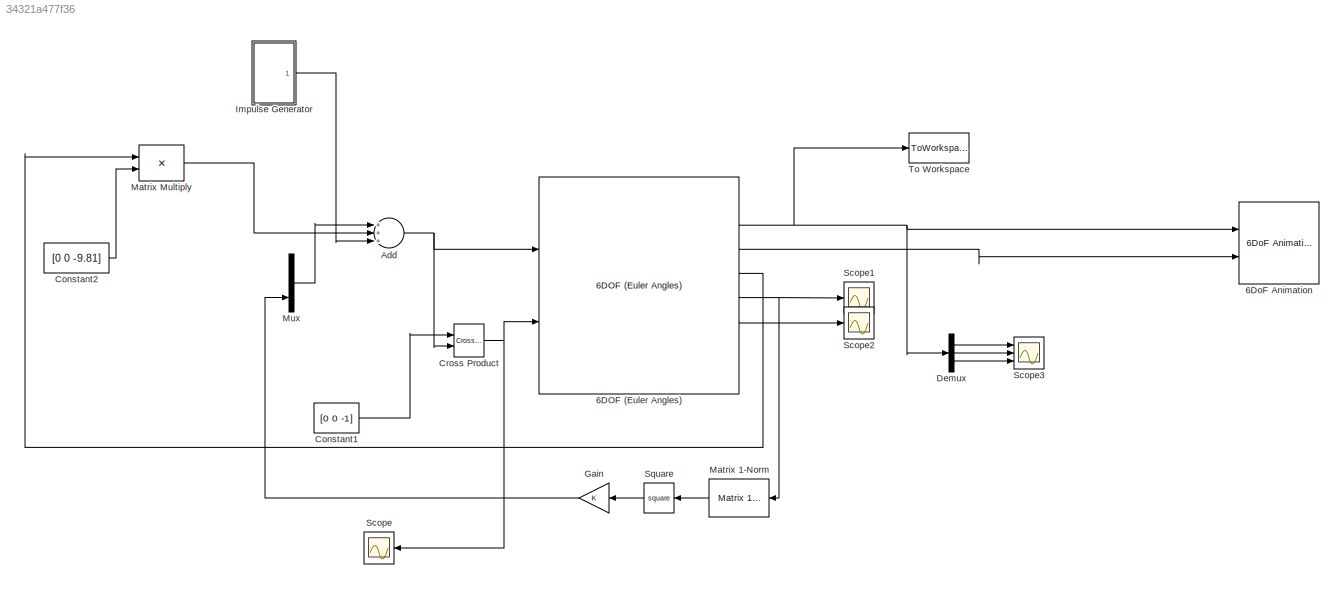
MODEL slx_34321a477f36
KIND model
CONFIG AbsTol = auto
CONFIG EnableMultiTasking = off
CONFIG FixedStep = auto
CONFIG MaxStep = auto
CONFIG MinStep = auto
CONFIG RelTol = 1e-9
CONFIG SampleTimeConstraint = Unconstrained
CONFIG Solver = VariableStepAuto
CONFIG SolverName = VariableStepAuto
CONFIG StartTime = 0.0
CONFIG StopTime = 5
BLOCK [Reference] 6DOF (Euler Angles)  REF=shared6dof/6DOF (Euler Angles)
  Ports = [2, 8]
  SourceBlock = shared6dof/6DOF (Euler Angles)
  SourceProductBaseCode = AE
  SourceProductName = Aerospace Blockset
  SourceType = 6DOF EoM (Body Axis)
BLOCK [Reference] 6DoF Animation  REF=aerolibanim/6DoF Animation
  Ports = [2]
  SourceBlock = aerolibanim/6DoF Animation
  SourceProductBaseCode = AE
  SourceProductName = Aerospace Blockset
  SourceType = 6DoF_Animation
BLOCK [Sum] Add
  InputSameDT = off
  Inputs = +++
  OutDataTypeStr = Inherit: Inherit via internal rule
  Ports = [3, 1]
  SaturateOnIntegerOverflow = off
BLOCK [Constant] Constant1
  Value = [0 0 -1]
BLOCK [Constant] Constant2
  Value = [0 0 -9.81]
BLOCK [Reference] Cross Product  REF=vrlib/Utilities/Cross Product
  Ports = [2, 1]
  SourceBlock = vrlib/Utilities/Cross Product
  SourceProductBaseCode = VR
  SourceProductName = Simulink 3D Animation
  SourceType = Cross Product
BLOCK [Demux] Demux
  DisplayOption = bar
  Outputs = 3
  Ports = [1, 3]
BLOCK [Gain] Gain
  Commented = on
  OutDataTypeStr = Inherit: Inherit via internal rule
  ParamDataTypeStr = Inherit: Inherit via internal rule
  SaturateOnIntegerOverflow = off
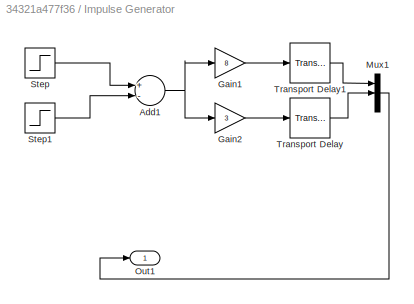
BLOCK [SubSystem] Impulse Generator
  Ports = [0, 1]
  RequestExecContextInheritance = off
BLOCK [Sum] Impulse Generator/Add1
  InputSameDT = off
  Inputs = +-
  OutDataTypeStr = Inherit: Inherit via internal rule
  Ports = [2, 1]
  SaturateOnIntegerOverflow = off
BLOCK [Gain] Impulse Generator/Gain1
  Gain = 8
  OutDataTypeStr = Inherit: Inherit via internal rule
  ParamDataTypeStr = Inherit: Inherit via internal rule
  SaturateOnIntegerOverflow = off
BLOCK [Gain] Impulse Generator/Gain2
  Gain = 3
  OutDataTypeStr = Inherit: Inherit via internal rule
  ParamDataTypeStr = Inherit: Inherit via internal rule
  SaturateOnIntegerOverflow = off
BLOCK [Mux] Impulse Generator/Mux1
  DisplayOption = bar
  Inputs = 3
  Ports = [3, 1]
BLOCK [Outport] Impulse Generator/Out1
  IconDisplay = Port number
BLOCK [Step] Impulse Generator/Step
  SampleTime = 0
BLOCK [Step] Impulse Generator/Step1
  SampleTime = 0
  Time = 1.2
BLOCK [TransportDelay] Impulse Generator/Transport Delay
  DelayTime = 0
  Ports = [1, 1]
BLOCK [TransportDelay] Impulse Generator/Transport Delay1
  DelayTime = 0
  Ports = [1, 1]
BLOCK [Reference] Matrix 1-Norm  REF=dspmtrx3/Matrix 
1-Norm
  Commented = on
  Ports = [1, 1]
  SourceBlock = dspmtrx3/Matrix \n1-Norm
  SourceProductBaseCode = DS
  SourceProductName = DSP System Toolbox
  SourceType = Matrix 1-Norm
BLOCK [Product] Matrix Multiply
  InputSameDT = off
  Multiplication = Matrix(*)
  OutDataTypeStr = Inherit: Inherit via internal rule
  Ports = [2, 1]
  RndMeth = Floor
  SaturateOnIntegerOverflow = off
BLOCK [Mux] Mux
  DisplayOption = bar
  Inputs = 3
  Ports = [3, 1]
BLOCK [Scope] Scope
  Floating = off
  NumInputPorts = 1
  Ports = [1]
  ScopeSpecificationString = Simulink.scopes.TimeScopeBlockCfg('CurrentConfiguration', extmgr.ConfigurationSet(extmgr.Configuration('Core','General UI',true),extmgr.Configuration('Core','Source UI',true),extmgr.Configuration('Sources','WiredSimulink',true),extmgr.Configuration('Visuals','Time Domain',true,'SerializedDisplays',{struct('MinYLimReal','-9.59363','MaxYLimReal','6.34269','YLabelReal','','MinYLimMag','0.00000','MaxY...<+1398ch>
BLOCK [Scope] Scope1
  Floating = off
  NumInputPorts = 1
  Ports = [1]
  ScopeSpecificationString = Simulink.scopes.TimeScopeBlockCfg('CurrentConfiguration', extmgr.ConfigurationSet(extmgr.Configuration('Core','General UI',true),extmgr.Configuration('Core','Source UI',true),extmgr.Configuration('Sources','WiredSimulink',true,'DataLoggingVariableName','ScopeData1'),extmgr.Configuration('Visuals','Time Domain',true,'SerializedDisplays',{struct('MinYLimReal','-7.72886','MaxYLimReal','6.2562','YLabe...<+1478ch>
BLOCK [Scope] Scope2
  Floating = off
  NumInputPorts = 1
  Ports = [1]
  ScopeSpecificationString = Simulink.scopes.TimeScopeBlockCfg('CurrentConfiguration', extmgr.ConfigurationSet(extmgr.Configuration('Core','General UI',true),extmgr.Configuration('Core','Source UI',true),extmgr.Configuration('Sources','WiredSimulink',true,'DataLoggingVariableName','ScopeData2'),extmgr.Configuration('Visuals','Time Domain',true,'SerializedDisplays',{struct('MinYLimReal','-1.96746','MaxYLimReal','1.96722','YLab...<+1461ch>
BLOCK [Scope] Scope3
  Floating = off
  NumInputPorts = 3
  Ports = [3]
  ScopeSpecificationString = Simulink.scopes.TimeScopeBlockCfg('CurrentConfiguration', extmgr.ConfigurationSet(extmgr.Configuration('Core','General UI',true),extmgr.Configuration('Core','Source UI',true),extmgr.Configuration('Sources','WiredSimulink',true,'DataLoggingVariableName','ScopeData3'),extmgr.Configuration('Visuals','Time Domain',true,'SerializedDisplays',{struct('MinYLimReal','-1.00000','MaxYLimReal','1.00000','YLab...<+2746ch>
BLOCK [Math] Square
  Commented = on
  Operator = square
  Ports = [1, 1]
BLOCK [ToWorkspace] To Workspace
  FixptAsFi = on
  MaxDataPoints = inf
  Ports = [1]
  SampleTime = -1
  Save2DSignal = 3-D array (concatenate along third dimension)
  SaveFormat = Timeseries
  VariableName = Xe
NET 6DOF (Euler Angles):2 -> 6DoF Animation:1, Demux:1, To Workspace:1
LINE 6DOF (Euler Angles):3 -> 6DoF Animation:2
LINE 6DOF (Euler Angles):4 -> Matrix Multiply:1
NET 6DOF (Euler Angles):5 -> Matrix 1-Norm:1, Scope1:1
LINE 6DOF (Euler Angles):6 -> Scope2:1
NET Add:1 -> 6DOF (Euler Angles):1, Cross Product:2
LINE Constant1:1 -> Cross Product:1
LINE Constant2:1 -> Matrix Multiply:2
NET Cross Product:1 -> 6DOF (Euler Angles):2, Scope:1
LINE Demux:1 -> Scope3:1
LINE Demux:2 -> Scope3:2
LINE Demux:3 -> Scope3:3
LINE Gain:1 -> Mux:3
NET Impulse Generator/Add1:1 -> Impulse Generator/Gain1:1, Impulse Generator/Gain2:1
LINE Impulse Generator/Gain1:1 -> Impulse Generator/Transport Delay1:1
LINE Impulse Generator/Gain2:1 -> Impulse Generator/Transport Delay:1
LINE Impulse Generator/Mux1:1 -> Impulse Generator/Out1:1
LINE Impulse Generator/Step1:1 -> Impulse Generator/Add1:2
LINE Impulse Generator/Step:1 -> Impulse Generator/Add1:1
LINE Impulse Generator/Transport Delay1:1 -> Impulse Generator/Mux1:1
LINE Impulse Generator/Transport Delay:1 -> Impulse Generator/Mux1:2
LINE Impulse Generator:1 -> Add:3
LINE Matrix 1-Norm:1 -> Square:1
LINE Matrix Multiply:1 -> Add:2
LINE Mux:1 -> Add:1
LINE Square:1 -> Gain:1
note: NET lines group one-source signal fan-out (src -> all destinations, sorted); 1:1 wires keep LINE
